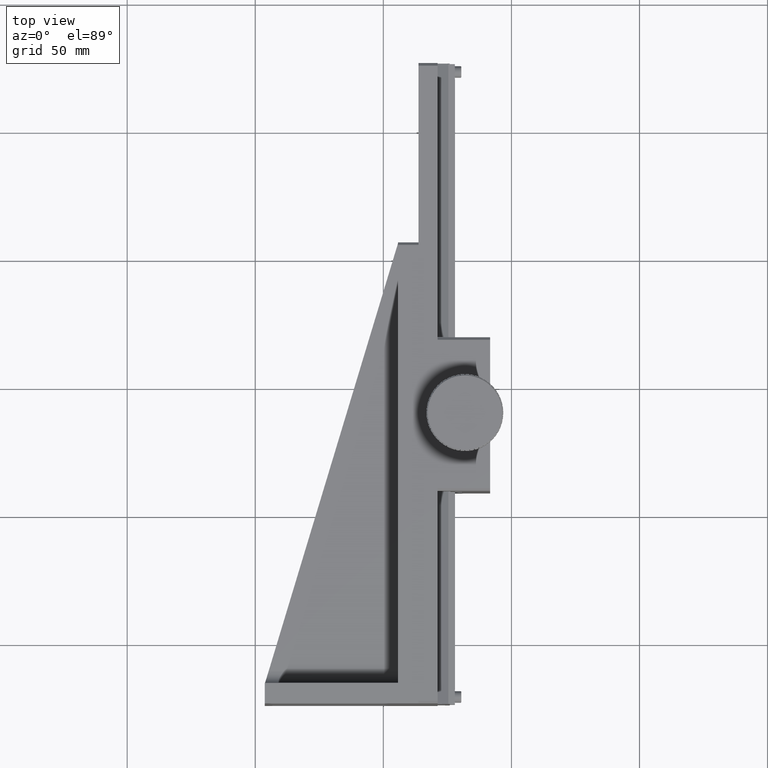
[diagram: clean part render]
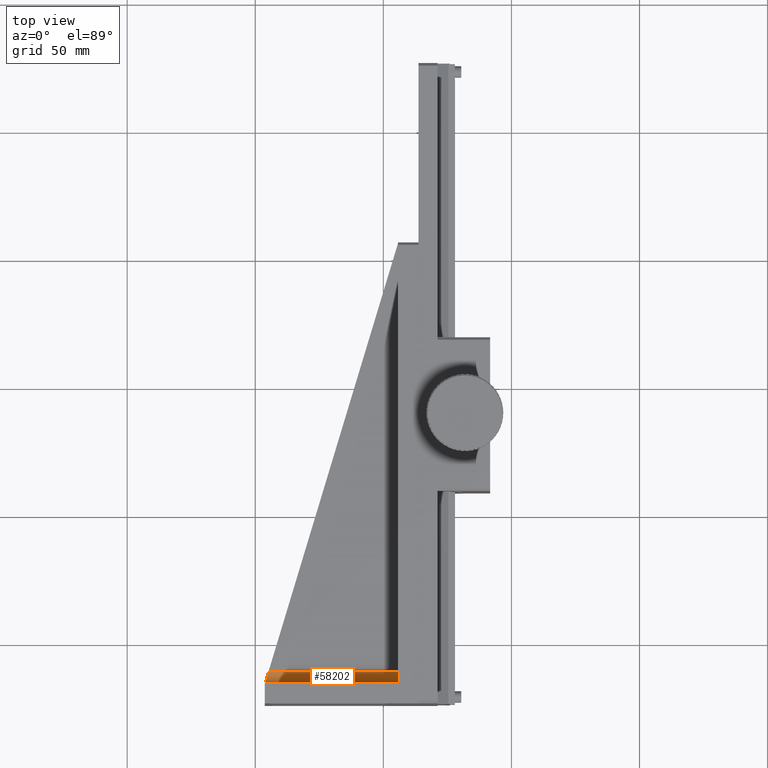
[diagram: same view with one face highlighted and labeled with its STEP entity id]
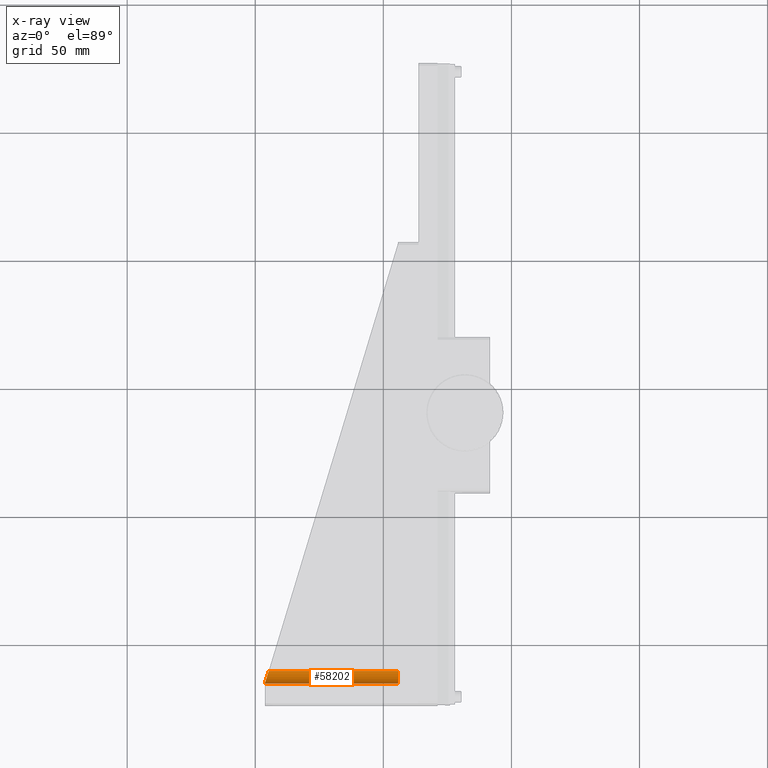
[diagram: x-ray of the same camera — body ghosted, the highlighted face saturated]
A machine part, top view. The second image highlights one B-rep face of the part: STEP entity #58202.
The next image is the same camera in x-ray: the body ghosted, the highlighted face saturated — about 0% of this face is hidden behind the body in this view.
In plain terms, the highlighted cylindrical surface (edge-blend (fillet) strip) has radius 5 mm, axis along (1, -0, -0).
Its self-contained STEP definition (entity closure, byte-faithful):
#712 = LINE ( 'NONE', #76505, #93936 ) ;
#1044 = VERTEX_POINT ( 'NONE', #33168 ) ;
#1057 = DIRECTION ( 'NONE',  ( -6.938893903907222067E-15, 0.000000000000000000, -1.000000000000000000 ) ) ;
#3361 = CARTESIAN_POINT ( 'NONE',  ( 33.70955724085310123, 139.1604683425934752, 125.7408711668433199 ) ) ;
#8209 = CARTESIAN_POINT ( 'NONE',  ( 55.70955724085309413, 139.1604683425934752, 125.7408711668431494 ) ) ;
#8949 = FACE_OUTER_BOUND ( 'NONE', #95011, .T. ) ;
#9704 = CARTESIAN_POINT ( 'NONE',  ( 4.335694021184539615, 136.2315361544589507, 125.7408711668435188 ) ) ;
#11230 = AXIS2_PLACEMENT_3D ( 'NONE', #42623, #41533, #1057 ) ;
#22611 = CARTESIAN_POINT ( 'NONE',  ( 5.221185147829856099, 139.1604683425935036, 125.7408711668434336 ) ) ;
#22768 = CIRCLE ( 'NONE', #62176, 5.000000000000004441 ) ;
#26727 = EDGE_CURVE ( 'NONE', #1044, #56783, #712, .T. ) ;
#29174 = ORIENTED_EDGE ( 'NONE', *, *, #26727, .T. ) ;
#32099 = ORIENTED_EDGE ( 'NONE', *, *, #42365, .T. ) ;
#33168 = CARTESIAN_POINT ( 'NONE',  ( 3.709557240853140758, 134.1604683425934184, 130.7408711668435330 ) ) ;
#34108 = EDGE_CURVE ( 'NONE', #56783, #94596, #22768, .T. ) ;
#37584 = DIRECTION ( 'NONE',  ( -1.000000000000000000, 0.000000000000000000, 6.982962677686266711E-15 ) ) ;
#40499 =( BOUNDED_CURVE ( )  B_SPLINE_CURVE ( 3, ( #86578, #9704, #105577, #105013 ),
 .UNSPECIFIED., .F., .T. ) 
 B_SPLINE_CURVE_WITH_KNOTS ( ( 4, 4 ),
 ( 1.570796326794891007, 3.141592653589791340 ),
 .UNSPECIFIED. ) 
 CURVE ( )  GEOMETRIC_REPRESENTATION_ITEM ( )  RATIONAL_B_SPLINE_CURVE ( ( 1.000000000000000000, 0.8047378541243640493, 0.8047378541243640493, 1.000000000000000000 ) ) 
 REPRESENTATION_ITEM ( '' )  );
#41533 = DIRECTION ( 'NONE',  ( 1.000000000000000000, -1.334402673828313339E-16, -6.982962677686266711E-15 ) ) ;
#41729 = DIRECTION ( 'NONE',  ( 1.000000000000000000, -1.334402673828313339E-16, 0.000000000000000000 ) ) ;
#42365 = EDGE_CURVE ( 'NONE', #94596, #83304, #54977, .T. ) ;
#42623 = CARTESIAN_POINT ( 'NONE',  ( 55.70955724085312255, 139.1604683425934752, 130.7408711668431636 ) ) ;
#44196 = CARTESIAN_POINT ( 'NONE',  ( 55.70955724085312966, 139.1604683425934752, 130.7408711668431636 ) ) ;
#46655 = EDGE_CURVE ( 'NONE', #83304, #1044, #40499, .T. ) ;
#50495 = CYLINDRICAL_SURFACE ( 'NONE', #11230, 5.000000000000004441 ) ;
#54977 = LINE ( 'NONE', #3361, #92789 ) ;
#56783 = VERTEX_POINT ( 'NONE', #109452 ) ;
#58202 = ADVANCED_FACE ( 'NONE', ( #8949 ), #50495, .F. ) ;
#62176 = AXIS2_PLACEMENT_3D ( 'NONE', #44196, #110928, #68373 ) ;
#66953 = ORIENTED_EDGE ( 'NONE', *, *, #46655, .T. ) ;
#68373 = DIRECTION ( 'NONE',  ( -6.938893903907222067E-15, 0.000000000000000000, -1.000000000000000000 ) ) ;
#69105 = ORIENTED_EDGE ( 'NONE', *, *, #34108, .T. ) ;
#76505 = CARTESIAN_POINT ( 'NONE',  ( 55.70955724085325755, 134.1604683425934184, 130.7408711668435615 ) ) ;
#83304 = VERTEX_POINT ( 'NONE', #22611 ) ;
#86578 = CARTESIAN_POINT ( 'NONE',  ( 5.221185147829856099, 139.1604683425935036, 125.7408711668434336 ) ) ;
#92789 = VECTOR ( 'NONE', #37584, 1000.000000000000000 ) ;
#93936 = VECTOR ( 'NONE', #41729, 1000.000000000000000 ) ;
#94596 = VERTEX_POINT ( 'NONE', #8209 ) ;
#95011 = EDGE_LOOP ( 'NONE', ( #32099, #66953, #29174, #69105 ) ) ;
#105013 = CARTESIAN_POINT ( 'NONE',  ( 3.709557240853140758, 134.1604683425934184, 130.7408711668435330 ) ) ;
#105577 = CARTESIAN_POINT ( 'NONE',  ( 3.709557240853126103, 134.1604683425934184, 127.8119389787089943 ) ) ;
#109452 = CARTESIAN_POINT ( 'NONE',  ( 55.70955724085312255, 134.1604683425934184, 130.7408711668433625 ) ) ;
#110928 = DIRECTION ( 'NONE',  ( 1.000000000000000000, -1.334402673828313339E-16, -6.982962677686266711E-15 ) ) ;